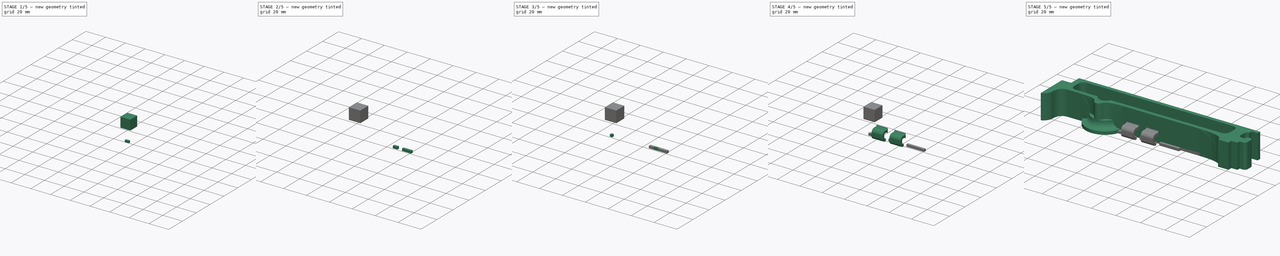
[diagram: build sequence overview — one tinted view per stage of 5, left to right]
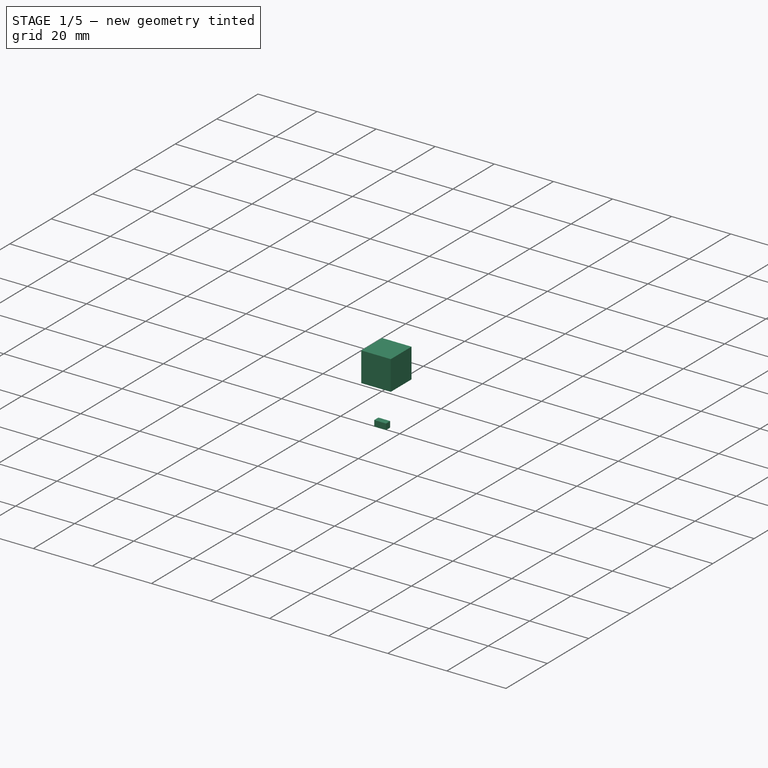
[diagram: stage 1 of 5 — iso view after this stage's code; geometry added in this stage tinted green]
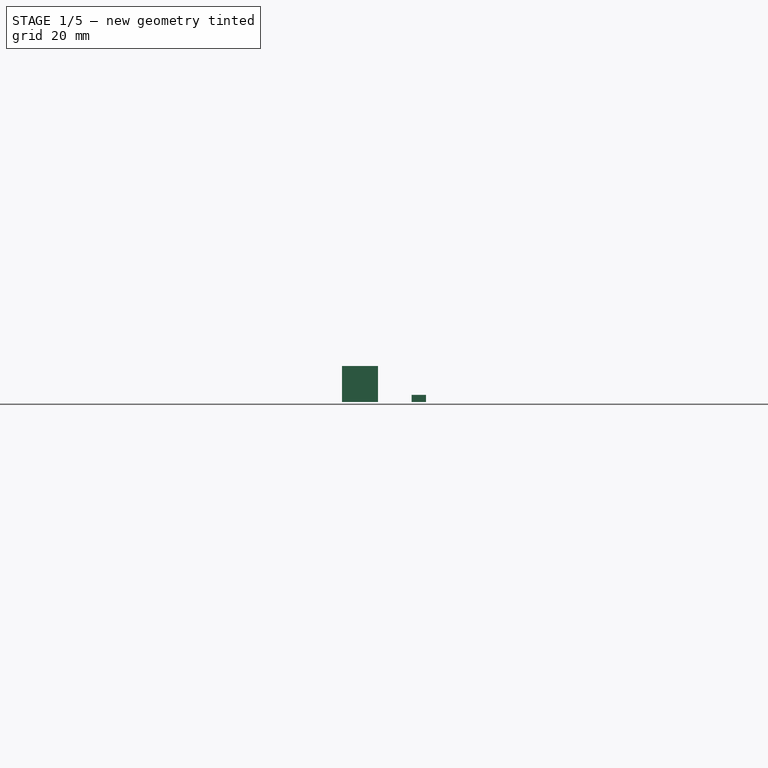
[diagram: stage 1 of 5 — front view after this stage's code; geometry added in this stage tinted green]
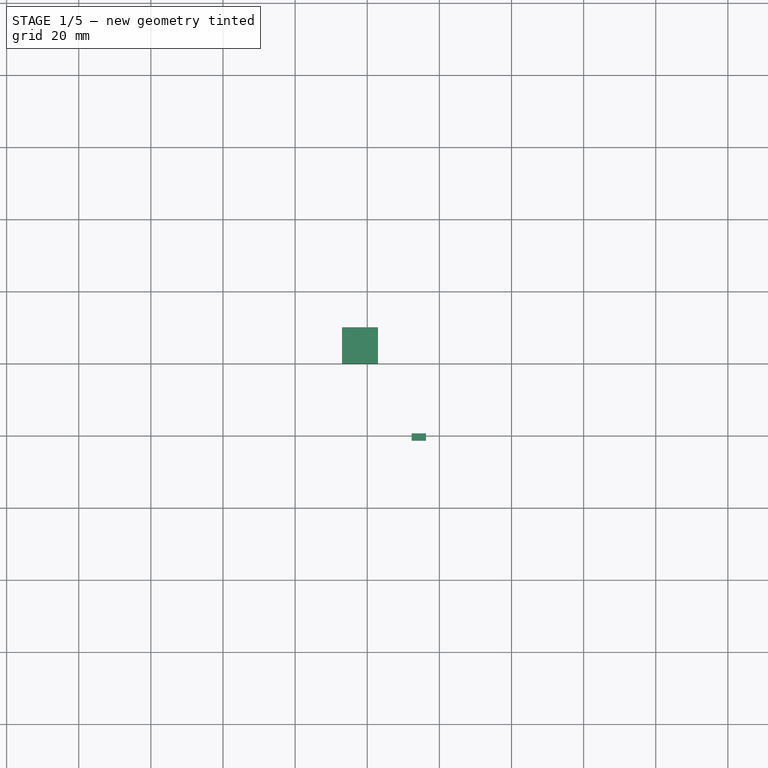
[diagram: stage 1 of 5 — top view after this stage's code; geometry added in this stage tinted green]
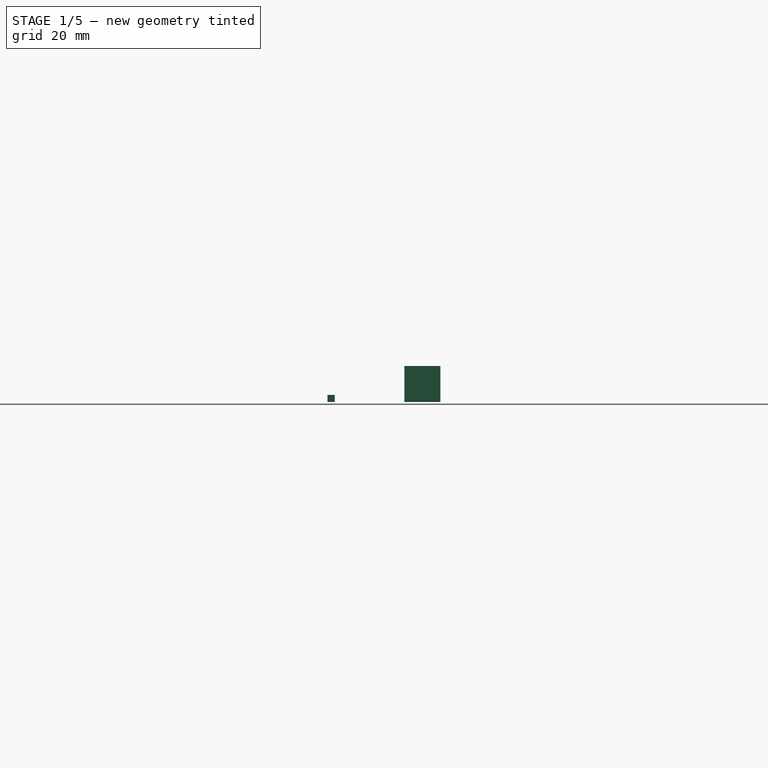
[diagram: stage 1 of 5 — right view after this stage's code; geometry added in this stage tinted green]
FCSTD DOCUMENT  (FreeCAD 0.19R0.19.2)
Label: v0_23
License: All rights reserved
LicenseURL: http://en.wikipedia.org/wiki/All_rights_reserved
objects: Part::Box×12, Part::MultiFuse×9, Sketcher::SketchObject×5, Part::Extrusion×4, App::MeasureDistance×4, Part::Revolution×1, Part::Cut×1
note: 32 computed .brp shape members not serialized (recipe doc carries the construction recipe); baked Part::Feature solids carry a one-line shape summary decoded from their .brp

FEATURE [Part::Box] Box023  label="Cube023"
  AttacherType = Attacher::AttachEngine3D
  Height = 2
  Length = 2
  Placement = pos=(-85.7,-21.3,0) rot=(0,0,1;0rad)
  Width = 2
FEATURE [Part::Box] Box024  label="Cube024"
  AttacherType = Attacher::AttachEngine3D
  Height = 2
  Length = 2
  Placement = pos=(-87.7,-21.3,0) rot=(0,0,1;0rad)
  Width = 2
FEATURE [Part::Box] Box025  label="Cube025"
  AttacherType = Attacher::AttachEngine3D
  Height = 2
  Length = 2
  Placement = pos=(-85.7,-21.3,0) rot=(0,0,1;0rad)
  Width = 2
FEATURE [Part::Box] Box026  label="Cube026"
  AttacherType = Attacher::AttachEngine3D
  Height = 2
  Length = 2
  Placement = pos=(-87.7,-21.3,0) rot=(0,0,1;0rad)
  Width = 2
FEATURE [Part::Box] Box  label="Cube"
  AttacherType = Attacher::AttachEngine3D
  Height = 10
  Length = 10
  Placement = pos=(-107,0,0) rot=(0,0,1;0rad)
  Width = 10
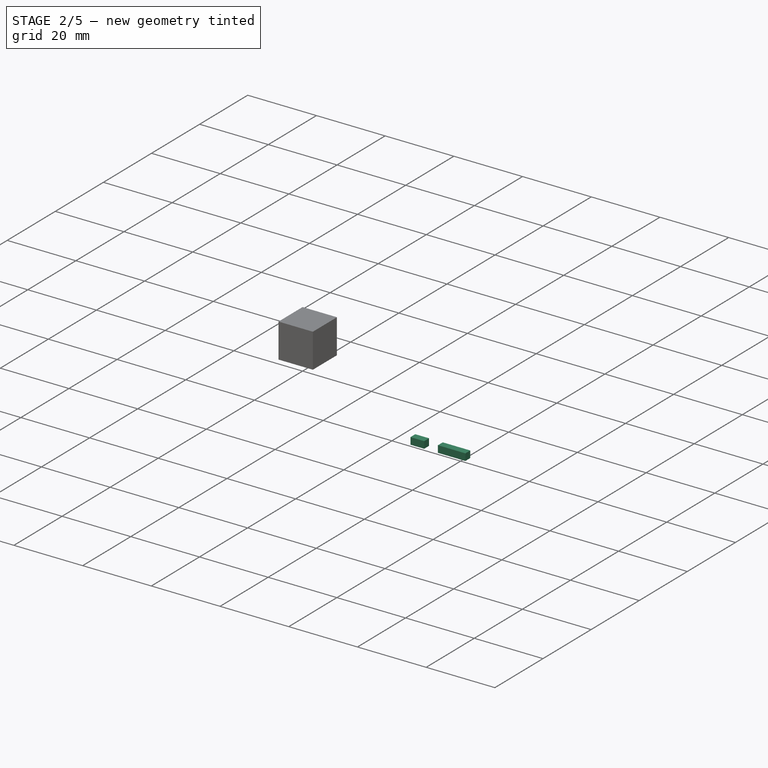
[diagram: stage 2 of 5 — iso view after this stage's code; geometry added in this stage tinted green]
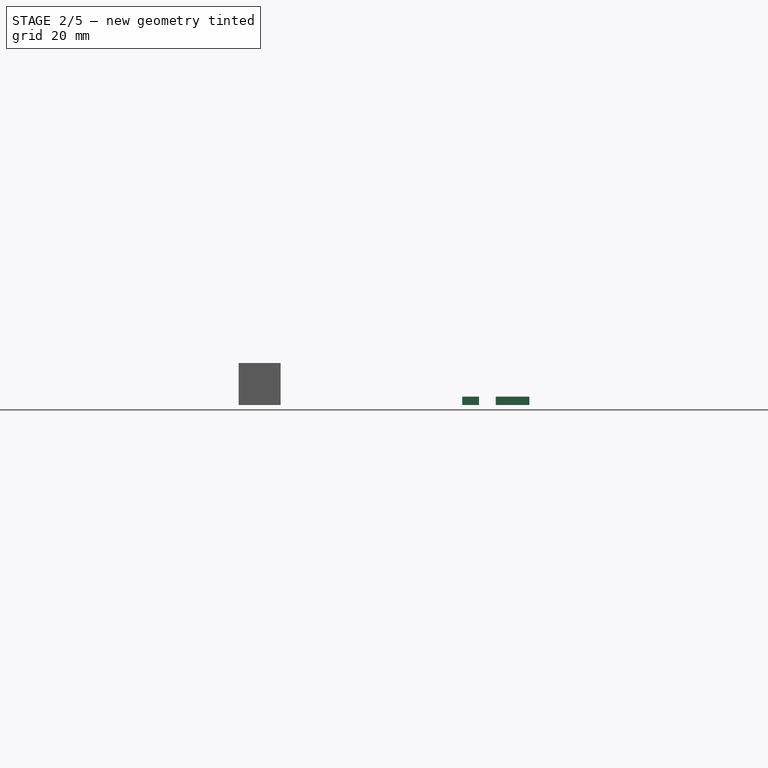
[diagram: stage 2 of 5 — front view after this stage's code; geometry added in this stage tinted green]
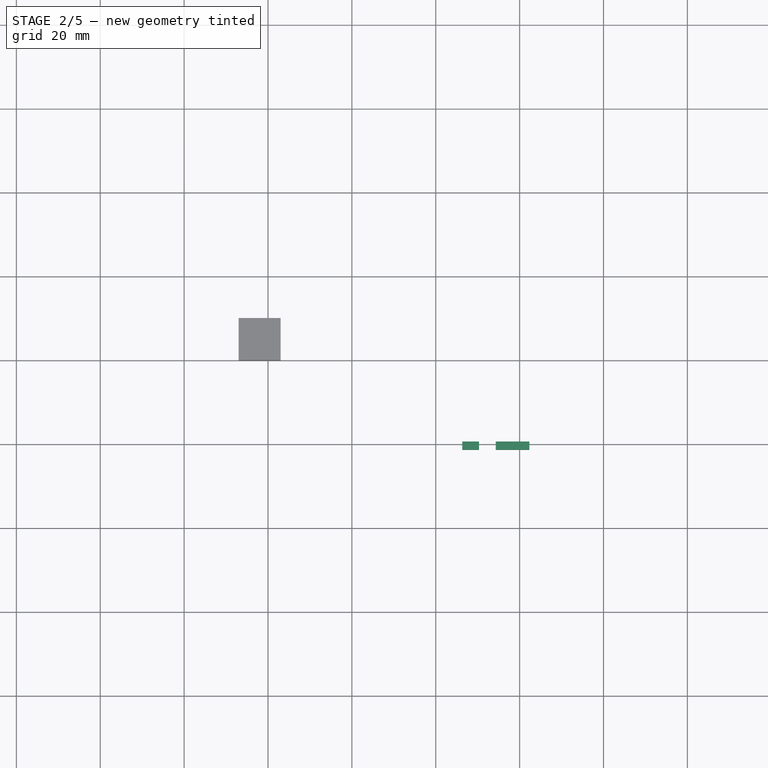
[diagram: stage 2 of 5 — top view after this stage's code; geometry added in this stage tinted green]
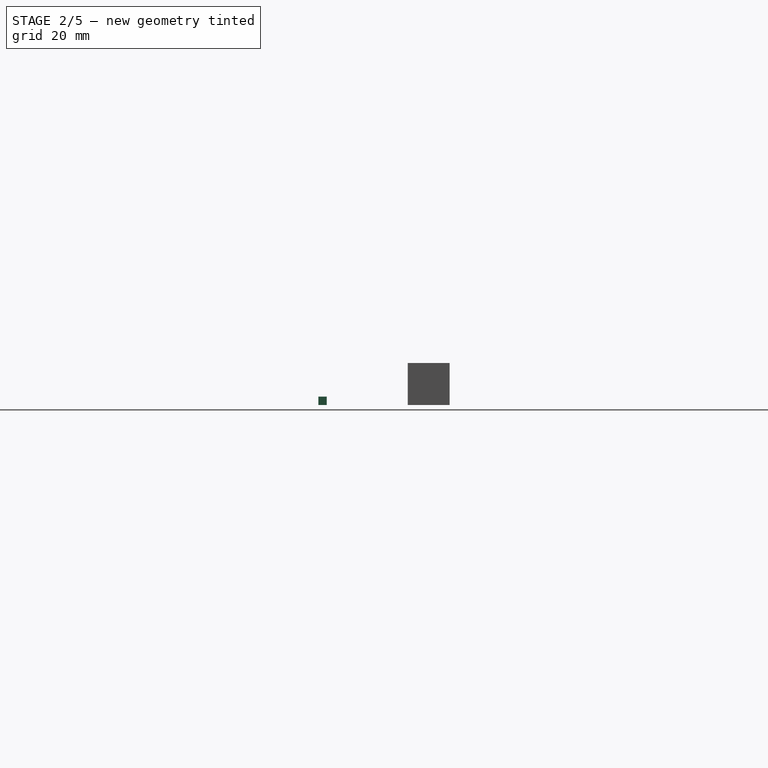
[diagram: stage 2 of 5 — right view after this stage's code; geometry added in this stage tinted green]
FEATURE [App::MeasureDistance] Distance002  label="Distance: 2.07 mm"
  Distance = 2.06534
  P1 = (-67.7,-21.2821,0)
  P2 = (-65.7,-21.7975,-0.00088501)
FEATURE [App::MeasureDistance] Distance003  label="Distance: 2.08 mm"
  Distance = 2.0829
  P1 = (-55.7,-21.7975,-0.00088501)
  P2 = (-53.682,-21.2816,0)
FEATURE [Part::Box] Box021  label="Cube021"
  AttacherType = Attacher::AttachEngine3D
  Height = 2
  Length = 2
  Placement = pos=(-85.7,-21.3,0) rot=(0,0,1;0rad)
  Width = 2
FEATURE [Part::Box] Box022  label="Cube022"
  AttacherType = Attacher::AttachEngine3D
  Height = 2
  Length = 2
  Placement = pos=(-87.7,-21.3,0) rot=(0,0,1;0rad)
  Width = 2
FEATURE [Part::MultiFuse] Fusion002
  Placement = pos=(34.018,0,0) rot=(0,0,1;0rad)
  Shapes = -> [Box021,Box022]
FEATURE [Part::MultiFuse] Fusion006
  Placement = pos=(38.02,0,0) rot=(0,0,1;0rad)
  Shapes = -> [Box023,Box024]
FEATURE [Part::MultiFuse] Fusion005
  Placement = pos=(34.018,0,0) rot=(0,0,1;0rad)
  Shapes = -> [Box025,Box026]
FEATURE [Part::MultiFuse] Fusion004
  Placement = pos=(8,0,0) rot=(0,0,1;0rad)
  Shapes = -> [Fusion006,Fusion005]
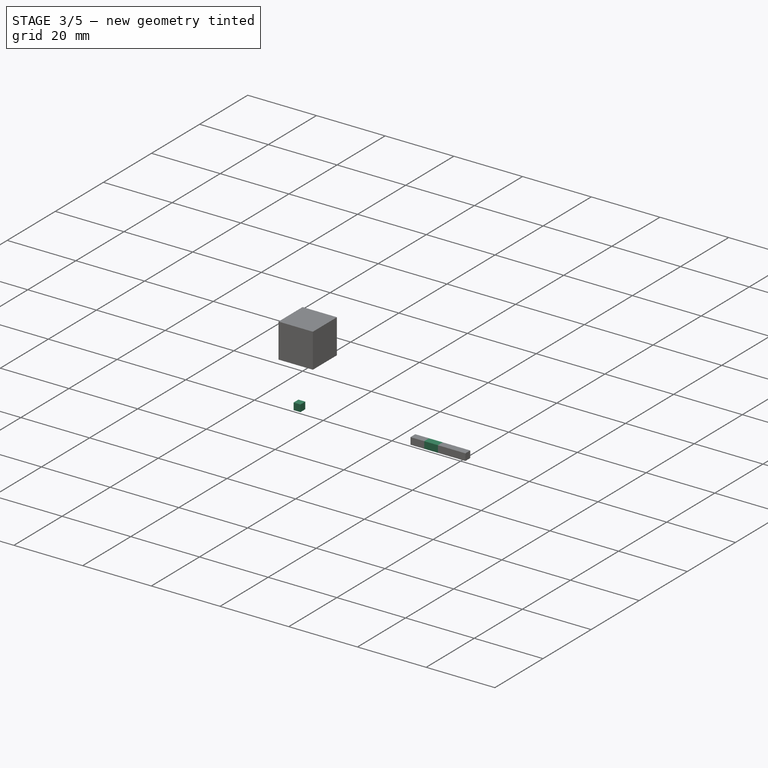
[diagram: stage 3 of 5 — iso view after this stage's code; geometry added in this stage tinted green]
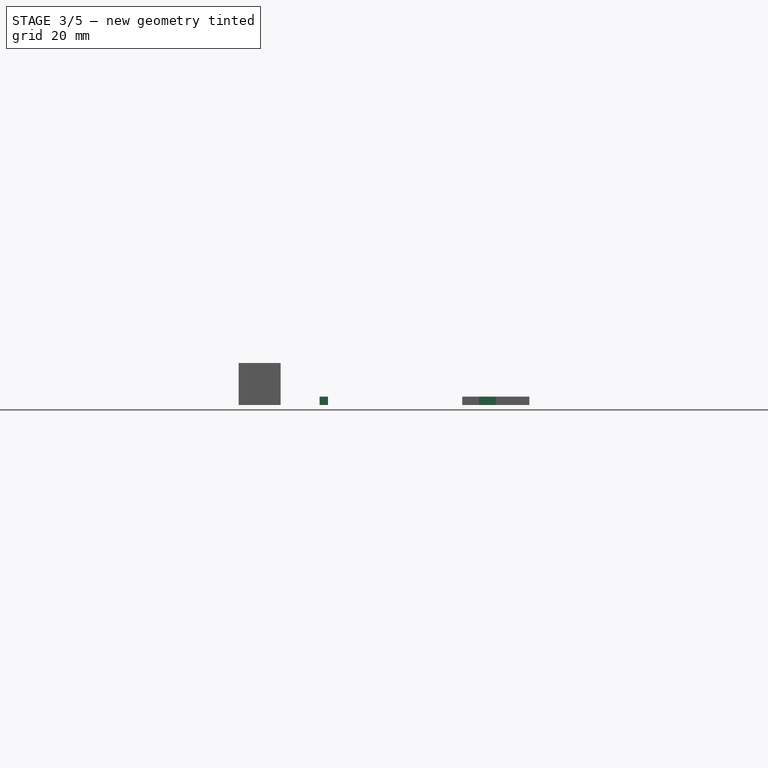
[diagram: stage 3 of 5 — front view after this stage's code; geometry added in this stage tinted green]
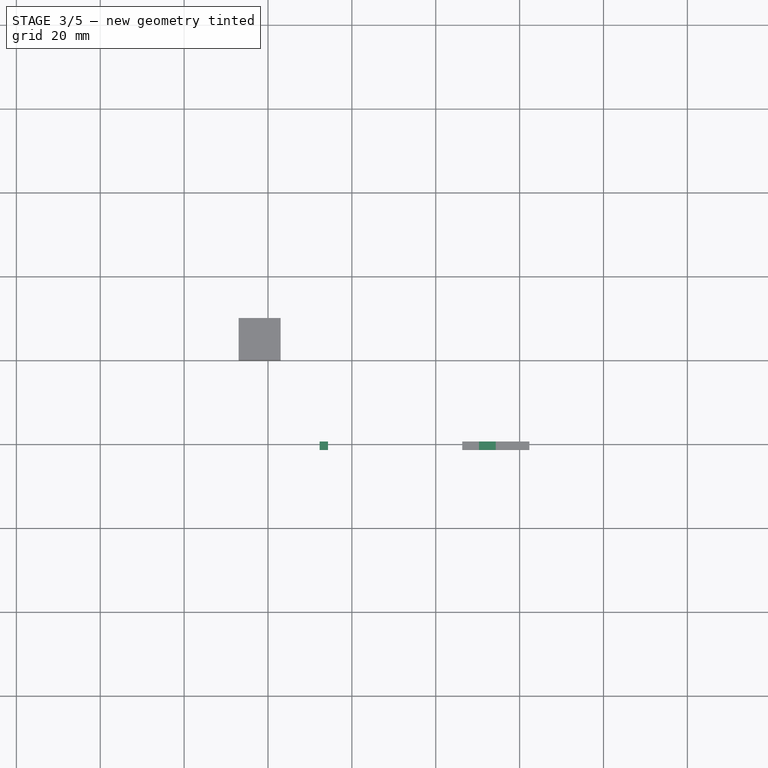
[diagram: stage 3 of 5 — top view after this stage's code; geometry added in this stage tinted green]
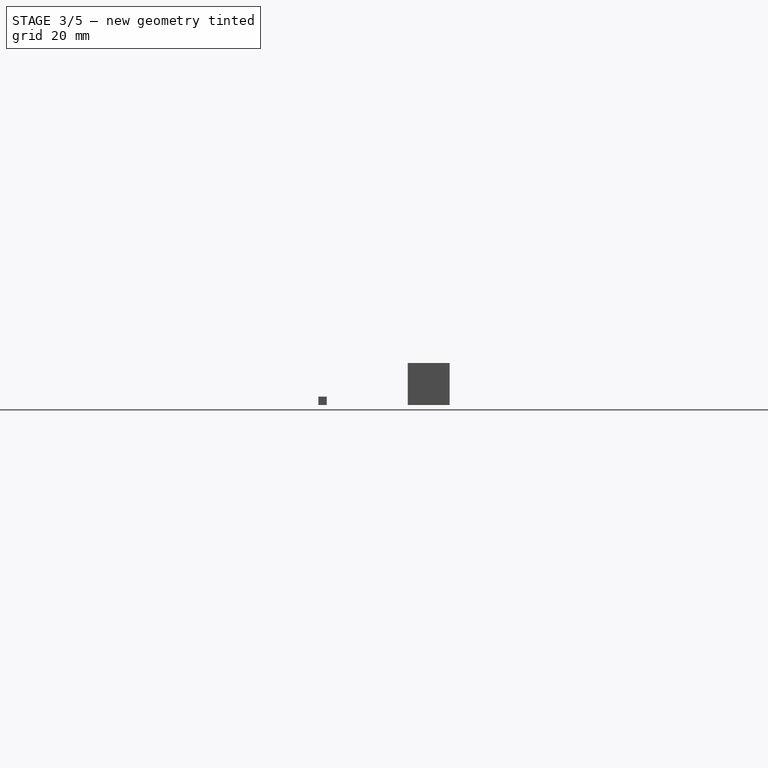
[diagram: stage 3 of 5 — right view after this stage's code; geometry added in this stage tinted green]
FEATURE [App::MeasureDistance] Distance  label="Distance: 6.80 mm"
  Distance = 6.80017
  P1 = (-83.7,-21.2887,0)
  P2 = (-81.7,-21.35,6.49911)
FEATURE [App::MeasureDistance] Distance001  label="Distance: 6.80 mm001"
  Distance = 6.80051
  P1 = (-69.7,-21.2829,0)
  P2 = (-71.7,-21.3744,6.49911)
FEATURE [Part::Box] Box018  label="Cube018"
  AttacherType = Attacher::AttachEngine3D
  Height = 2
  Length = 2
  Placement = pos=(-87.7,-21.3,0) rot=(0,0,1;0rad)
  Width = 2
FEATURE [Part::Box] Box019  label="Cube019"
  AttacherType = Attacher::AttachEngine3D
  Height = 2
  Length = 2
  Placement = pos=(-85.7,-21.3,0) rot=(0,0,1;0rad)
  Width = 2
FEATURE [Part::Box] Box020  label="Cube020"
  AttacherType = Attacher::AttachEngine3D
  Height = 2
  Length = 2
  Placement = pos=(-87.7,-21.3,0) rot=(0,0,1;0rad)
  Width = 2
FEATURE [Part::MultiFuse] Fusion001
  Placement = pos=(38.02,0,0) rot=(0,0,1;0rad)
  Shapes = -> [Box019,Box020]
FEATURE [Part::MultiFuse] Fusion003
  Shapes = -> [Fusion001,Fusion002]
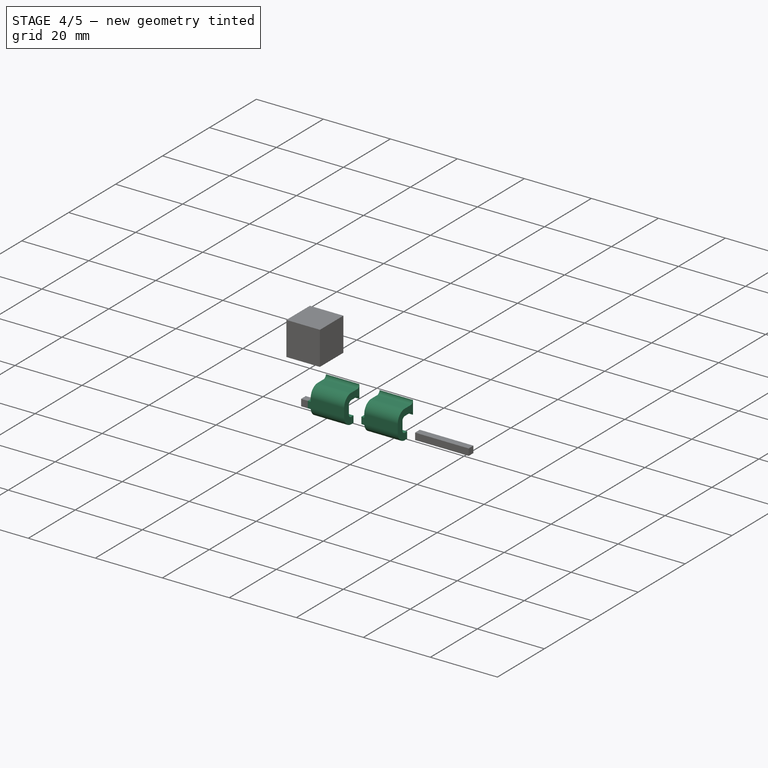
[diagram: stage 4 of 5 — iso view after this stage's code; geometry added in this stage tinted green]
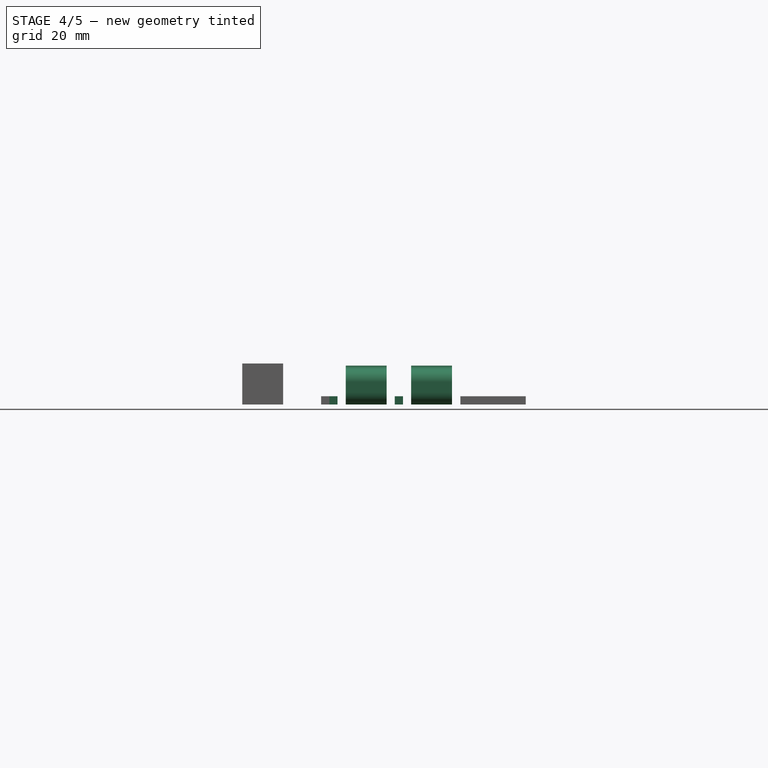
[diagram: stage 4 of 5 — front view after this stage's code; geometry added in this stage tinted green]
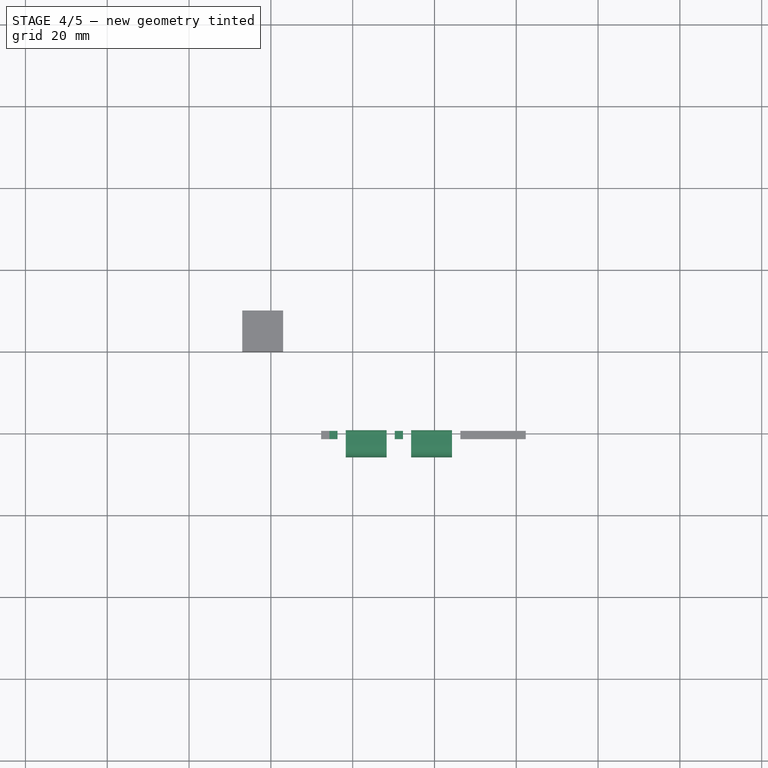
[diagram: stage 4 of 5 — top view after this stage's code; geometry added in this stage tinted green]
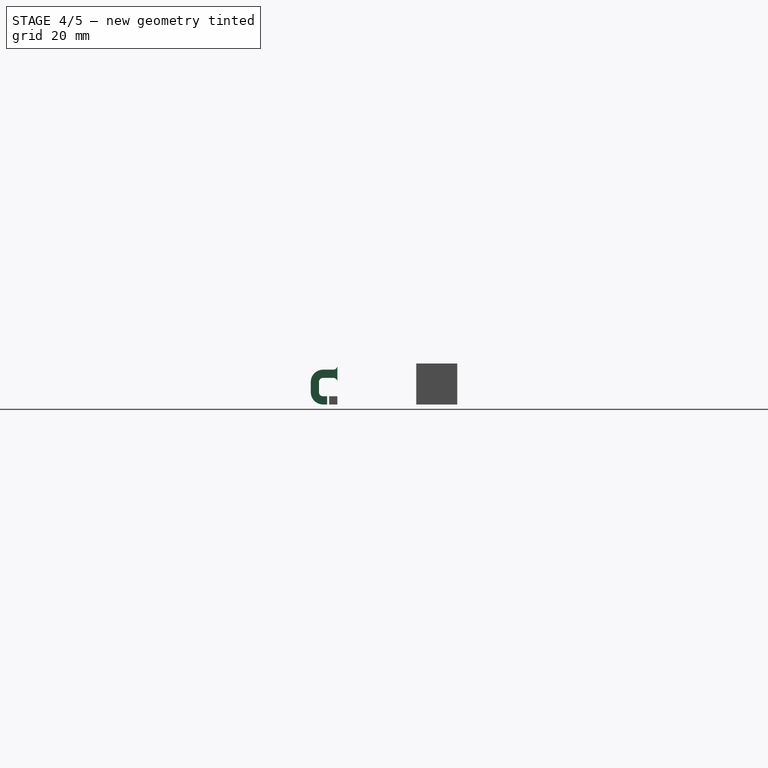
[diagram: stage 4 of 5 — right view after this stage's code; geometry added in this stage tinted green]
FEATURE [Sketcher::SketchObject] Sketch044
  FullyConstrained = true
  MapMode = 4
  Placement = pos=(0,0,0) rot=(0.57735,0.57735,0.57735;2.0944rad)
  sketch-geometry (14):
    g0: LineSegment StartX=6.08745 StartY=-4.11588 StartZ=0 EndX=6.08745 EndY=-2.11589 EndZ=0
    g1: LineSegment StartX=8.08745 StartY=1.38411 StartZ=0 EndX=8.08745 EndY=-1.11589 EndZ=0
    g2: ArcOfCircle CenterX=7.08745 CenterY=-1.11589 CenterZ=0 NormalX=0 NormalY=0 NormalZ=1 AngleXU=0 Radius=1 StartAngle=4.71239 EndAngle=6.28319
    g3: LineSegment StartX=6.08745 StartY=-2.11589 StartZ=0 EndX=7.08745 EndY=-2.11589 EndZ=0
    g4: LineSegment StartX=6.08745 StartY=-4.11588 StartZ=0 EndX=7.08745 EndY=-4.11588 EndZ=0
    g5: ArcOfCircle CenterX=7.08745 CenterY=-1.11589 CenterZ=0 NormalX=0 NormalY=0 NormalZ=1 AngleXU=0 Radius=3 StartAngle=4.71239 EndAngle=6.28319
    g6: ArcOfCircle CenterX=7.08745 CenterY=1.38411 CenterZ=0 NormalX=0 NormalY=0 NormalZ=1 AngleXU=0 Radius=1 StartAngle=5.35e-14 EndAngle=1.5708
    g7: LineSegment StartX=10.0875 StartY=-1.11588 StartZ=0 EndX=10.0875 EndY=1.38411 EndZ=0
    g8: ArcOfCircle CenterX=7.08745 CenterY=1.38411 CenterZ=0 NormalX=0 NormalY=0 NormalZ=1 AngleXU=0 Radius=3 StartAngle=3.57e-14 EndAngle=1.5708
    g9: ArcOfCircle CenterX=4.58745 CenterY=1.38412 CenterZ=0 NormalX=0 NormalY=0 NormalZ=1 AngleXU=0 Radius=1 StartAngle=1.57081 EndAngle=3.14159
    g10: LineSegment StartX=4.58744 StartY=2.38411 StartZ=0 EndX=7.08745 EndY=2.38411 EndZ=0
    g11: LineSegment StartX=4.58745 StartY=4.38411 StartZ=0 EndX=7.08745 EndY=4.38411 EndZ=0
    g12: ArcOfCircle CenterX=4.58745 CenterY=5.38411 CenterZ=0 NormalX=0 NormalY=0 NormalZ=1 AngleXU=0 Radius=1 StartAngle=3.14159 EndAngle=4.71239
    g13: LineSegment StartX=3.58745 StartY=5.38411 StartZ=0 EndX=3.58745 EndY=1.38411 EndZ=0
  constraints (33):
    c: Vertical(g0)
    c: Block(g0)
    c: Block(g1)
    c: Coincident(g2,g1)
    c: Coincident(g3,g0)
    c: Coincident(g3,g2)
    c: Horizontal(g3)
    c: Block(g2)
    c: Coincident(g4,g0)
    c: Horizontal(g4)
    c: Coincident(g5,g2)
    c: Block(g5)
    c: Block(g4)
    c: Coincident(g6,g1)
    c: Block(g6)
    c: Coincident(g7,g5)
    c: Vertical(g7)
    c: Coincident(g8,g6)
    c: Block(g8)
    c: Block(g7)
    c: Coincident(g10,g9)
    c: Coincident(g10,g6)
    c: Horizontal(g10)
    c: Block(g10)
    c: Block(g9)
    c: Coincident(g11,g8)
    c: Horizontal(g11)
    c: Block(g12)
    c: Block(g11)
    c: Coincident(g13,g12)
    c: Coincident(g13,g9)
    c: Vertical(g13)
    c: Tangent(g13,g9)
FEATURE [Part::Extrusion] Extrude039
  Base = -> Sketch044
  Dir = (1,0,0)
  DirMode = 2
  FaceMakerClass = Part::FaceMakerBullseye
  LengthFwd = 10
  LengthRev = 0
  Placement = pos=(-55.7,-15.71,4.115) rot=(0,0,1;3.14159rad)
  Solid = true
  Symmetric = false
FEATURE [Sketcher::SketchObject] Sketch045
  FullyConstrained = true
  MapMode = 4
  Placement = pos=(0,0,0) rot=(0.57735,0.57735,0.57735;2.0944rad)
  sketch-geometry (14):
    g0: LineSegment StartX=6.08745 StartY=-4.11588 StartZ=0 EndX=6.08745 EndY=-2.11589 EndZ=0
    g1: LineSegment StartX=8.08745 StartY=1.38411 StartZ=0 EndX=8.08745 EndY=-1.11589 EndZ=0
    g2: ArcOfCircle CenterX=7.08745 CenterY=-1.11589 CenterZ=0 NormalX=0 NormalY=0 NormalZ=1 AngleXU=0 Radius=1 StartAngle=4.71239 EndAngle=6.28319
    g3: LineSegment StartX=6.08745 StartY=-2.11589 StartZ=0 EndX=7.08745 EndY=-2.11589 EndZ=0
    g4: LineSegment StartX=6.08745 StartY=-4.11588 StartZ=0 EndX=7.08745 EndY=-4.11588 EndZ=0
    g5: ArcOfCircle CenterX=7.08745 CenterY=-1.11589 CenterZ=0 NormalX=0 NormalY=0 NormalZ=1 AngleXU=0 Radius=3 StartAngle=4.71239 EndAngle=6.28319
    g6: ArcOfCircle CenterX=7.08745 CenterY=1.38411 CenterZ=0 NormalX=0 NormalY=0 NormalZ=1 AngleXU=0 Radius=1 StartAngle=5.35e-14 EndAngle=1.5708
    g7: LineSegment StartX=10.0875 StartY=-1.11588 StartZ=0 EndX=10.0875 EndY=1.38411 EndZ=0
    g8: ArcOfCircle CenterX=7.08745 CenterY=1.38411 CenterZ=0 NormalX=0 NormalY=0 NormalZ=1 AngleXU=0 Radius=3 StartAngle=3.57e-14 EndAngle=1.5708
    g9: ArcOfCircle CenterX=4.58745 CenterY=1.38412 CenterZ=0 NormalX=0 NormalY=0 NormalZ=1 AngleXU=0 Radius=1 StartAngle=1.57081 EndAngle=3.14159
    g10: LineSegment StartX=4.58744 StartY=2.38411 StartZ=0 EndX=7.08745 EndY=2.38411 EndZ=0
    g11: LineSegment StartX=4.58745 StartY=4.38411 StartZ=0 EndX=7.08745 EndY=4.38411 EndZ=0
    g12: ArcOfCircle CenterX=4.58745 CenterY=5.38411 CenterZ=0 NormalX=0 NormalY=0 NormalZ=1 AngleXU=0 Radius=1 StartAngle=3.14159 EndAngle=4.71239
    g13: LineSegment StartX=3.58745 StartY=5.38411 StartZ=0 EndX=3.58745 EndY=1.38411 EndZ=0
  constraints (33):
    c: Vertical(g0)
    c: Block(g0)
    c: Block(g1)
    c: Coincident(g2,g1)
    c: Coincident(g3,g0)
    c: Coincident(g3,g2)
    c: Horizontal(g3)
    c: Block(g2)
    c: Coincident(g4,g0)
    c: Horizontal(g4)
    c: Coincident(g5,g2)
    c: Block(g5)
    c: Block(g4)
    c: Coincident(g6,g1)
    c: Block(g6)
    c: Coincident(g7,g5)
    c: Vertical(g7)
    c: Coincident(g8,g6)
    c: Block(g8)
    c: Block(g7)
    c: Coincident(g10,g9)
    c: Coincident(g10,g6)
    c: Horizontal(g10)
    c: Block(g10)
    c: Block(g9)
    c: Coincident(g11,g8)
    c: Horizontal(g11)
    c: Block(g12)
    c: Block(g11)
    c: Coincident(g13,g12)
    c: Coincident(g13,g9)
    c: Vertical(g13)
    c: Tangent(g13,g9)
FEATURE [Part::Extrusion] Extrude040
  Base = -> Sketch045
  Dir = (1,0,0)
  DirMode = 2
  FaceMakerClass = Part::FaceMakerBullseye
  LengthFwd = 10
  LengthRev = 0
  Placement = pos=(-71.7,-15.71,4.115) rot=(0,0,1;3.14159rad)
  Solid = true
  Symmetric = false
FEATURE [Part::Box] Box016  label="Cube016"
  AttacherType = Attacher::AttachEngine3D
  Height = 2
  Length = 2
  Placement = pos=(-69.7,-21.3,0) rot=(0,0,1;0rad)
  Width = 2
FEATURE [Part::Box] Box017  label="Cube017"
  AttacherType = Attacher::AttachEngine3D
  Height = 2
  Length = 2
  Placement = pos=(-85.7,-21.3,0) rot=(0,0,1;0rad)
  Width = 2
FEATURE [Part::MultiFuse] Fusion
  Shapes = -> [Box017,Box018]
FEATURE [Part::MultiFuse] Fusion007
  Shapes = -> [Fusion004,Fusion003,Box016,Fusion]
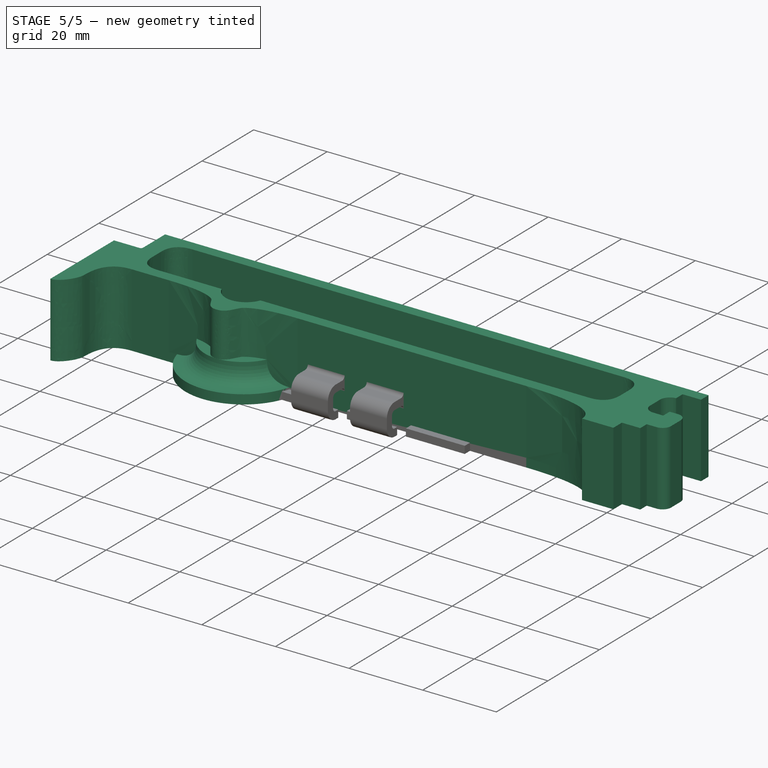
[diagram: stage 5 of 5 — iso view after this stage's code; geometry added in this stage tinted green]
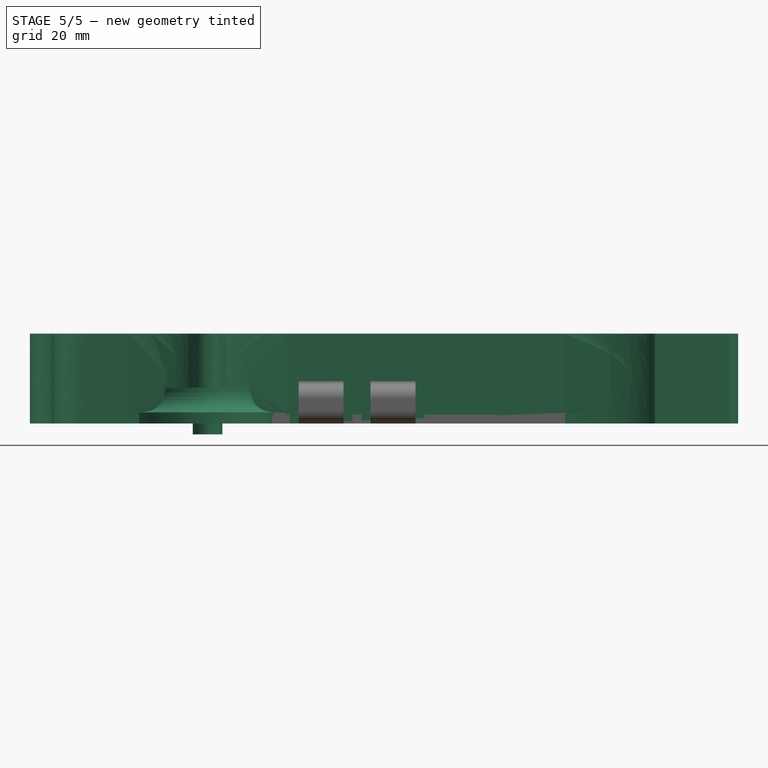
[diagram: stage 5 of 5 — front view after this stage's code; geometry added in this stage tinted green]
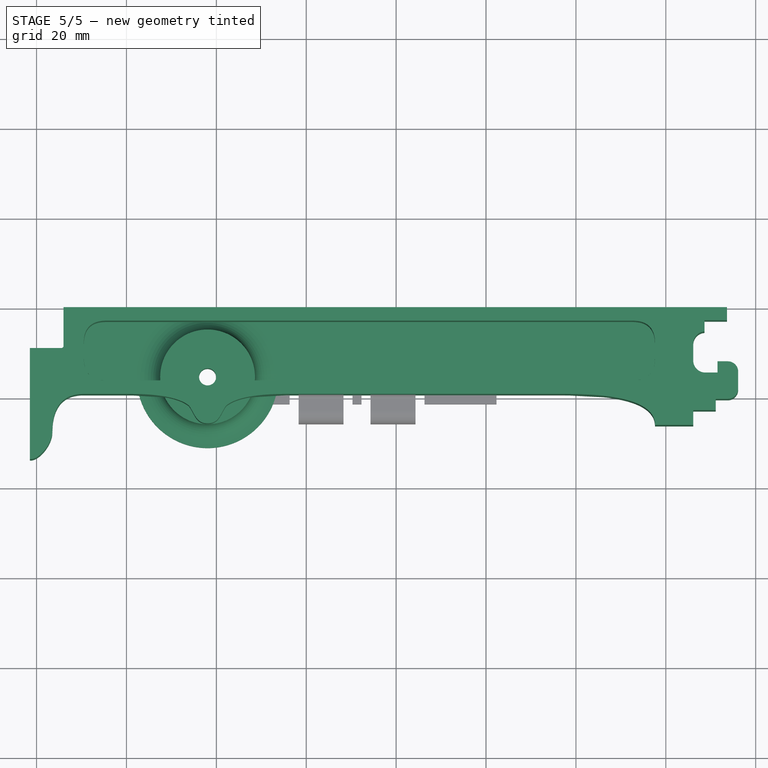
[diagram: stage 5 of 5 — top view after this stage's code; geometry added in this stage tinted green]
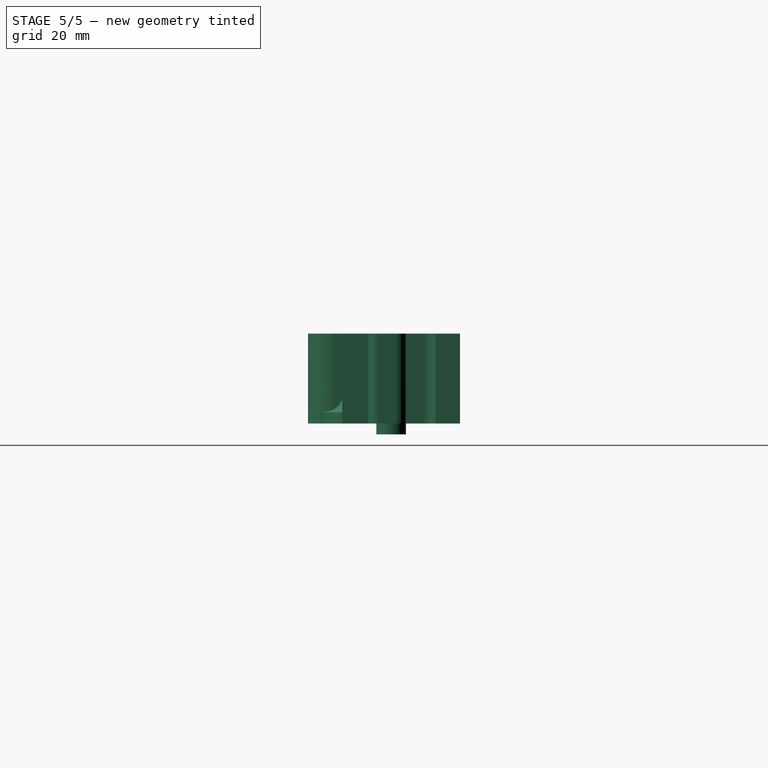
[diagram: stage 5 of 5 — right view after this stage's code; geometry added in this stage tinted green]
FEATURE [Sketcher::SketchObject] Sketch
  FullyConstrained = true
  sketch-geometry (66):
    g0: Circle CenterX=-101.95 CenterY=-14.3 CenterZ=0 NormalX=0 NormalY=0 NormalZ=1 AngleXU=0 Radius=3.25
    g1: LineSegment StartX=-134 StartY=2.68e-14 StartZ=0 EndX=-134 EndY=-8.6 EndZ=0
    g2: LineSegment StartX=-134.5 StartY=-9.1 StartZ=0 EndX=-141.5 EndY=-9.1 EndZ=0
    g3: ArcOfCircle CenterX=-134.5 CenterY=-8.6 CenterZ=0 NormalX=0 NormalY=0 NormalZ=1 AngleXU=0 Radius=0.5 StartAngle=4.71239 EndAngle=6.28319
    g4: Circle CenterX=-97.7 CenterY=-21.8 CenterZ=0 NormalX=0 NormalY=0 NormalZ=1 AngleXU=0 Radius=1
    g5: Circle CenterX=-94.45 CenterY=-19.3 CenterZ=0 NormalX=0 NormalY=0 NormalZ=1 AngleXU=0 Radius=1
    g6: Circle CenterX=-84.45 CenterY=-19.3 CenterZ=0 NormalX=0 NormalY=0 NormalZ=1 AngleXU=0 Radius=1
    g7: BSplineCurve PolesCount=3 KnotsCount=2 Degree=2 IsPeriodic=0
    g8: GeomPoint X=-97.7 Y=-21.8 Z=0
    g9: GeomPoint X=-84.45 Y=-19.3 Z=0
    g10: Circle CenterX=-106.2 CenterY=-21.8 CenterZ=0 NormalX=0 NormalY=0 NormalZ=1 AngleXU=0 Radius=1
    g11: Circle CenterX=-109.45 CenterY=-19.3 CenterZ=0 NormalX=0 NormalY=0 NormalZ=1 AngleXU=0 Radius=1
    g12: Circle CenterX=-119.45 CenterY=-19.3 CenterZ=0 NormalX=0 NormalY=0 NormalZ=1 AngleXU=0 Radius=1
    g13: BSplineCurve PolesCount=3 KnotsCount=2 Degree=2 IsPeriodic=0
    g14: GeomPoint X=-106.2 Y=-21.8 Z=0
    g15: GeomPoint X=-119.45 Y=-19.3 Z=0
    g16: LineSegment StartX=-141.5 StartY=-9.1 StartZ=0 EndX=-141.5 EndY=-33.8 EndZ=0
    g17-g20: Circle x4 (B-spline internal-alignment scaffolding for g21; pole/knot coordinates omitted)
    g21: BSplineCurve PolesCount=4 KnotsCount=2 Degree=3 IsPeriodic=0
    g22: GeomPoint X=-141.5 Y=-33.8 Z=0
    g23: GeomPoint X=-136.5 Y=-27.8 Z=0
    g24: Circle CenterX=-136.5 CenterY=-27.8 CenterZ=0 NormalX=0 NormalY=0 NormalZ=1 AngleXU=0 Radius=1
    g25: Circle CenterX=-136.5 CenterY=-19.3 CenterZ=0 NormalX=0 NormalY=0 NormalZ=1 AngleXU=0 Radius=1
    g26: Circle CenterX=-129.5 CenterY=-19.3 CenterZ=0 NormalX=0 NormalY=0 NormalZ=1 AngleXU=0 Radius=1
    g27: BSplineCurve PolesCount=3 KnotsCount=2 Degree=2 IsPeriodic=0
    g28: GeomPoint X=-136.5 Y=-27.8 Z=0
    g29: GeomPoint X=-129.5 Y=-19.3 Z=0
    g30: LineSegment StartX=-129.5 StartY=-19.3 StartZ=0 EndX=-119.45 EndY=-19.3 EndZ=0
    g31-g37: Circle x7 (B-spline internal-alignment scaffolding for g38; pole/knot coordinates omitted)
    g38: BSplineCurve PolesCount=7 KnotsCount=5 Degree=3 IsPeriodic=0
    g39-g43: GeomPoint x5 (B-spline internal-alignment scaffolding for g38; pole/knot coordinates omitted)
    g44: LineSegment StartX=6.1 StartY=-22.9 StartZ=0 EndX=6.1 EndY=-26.2 EndZ=0
    g45: ArcOfCircle CenterX=13.8 CenterY=-14.35 CenterZ=0 NormalX=0 NormalY=0 NormalZ=1 AngleXU=0 Radius=2.3 StartAngle=8e-16 EndAngle=1.5708
    g46: LineSegment StartX=8.6 StartY=-5.40742 StartZ=0 EndX=8.6 EndY=-2.9 EndZ=0
    g47: LineSegment StartX=8.6 StartY=-2.9 StartZ=0 EndX=13.6 EndY=-2.9 EndZ=0
    g48: LineSegment StartX=13.6 StartY=-2.9 StartZ=0 EndX=13.6 EndY=2.66e-14 EndZ=0
    g49: LineSegment StartX=8.8 StartY=-14.55 StartZ=0 EndX=11.5 EndY=-14.55 EndZ=0
    g50: LineSegment StartX=11.5 StartY=-12.05 StartZ=0 EndX=11.5 EndY=-14.55 EndZ=0
    g51: LineSegment StartX=11.5 StartY=-12.05 StartZ=0 EndX=13.8 EndY=-12.05 EndZ=0
    g52: ArcOfCircle CenterX=13.8 CenterY=-18.1 CenterZ=0 NormalX=0 NormalY=0 NormalZ=1 AngleXU=0 Radius=2.3 StartAngle=4.71239 EndAngle=6.28319
    g53: LineSegment StartX=13.8 StartY=-20.4 StartZ=0 EndX=11.1 EndY=-20.4 EndZ=0
    g54: LineSegment StartX=11.1 StartY=-22.9 StartZ=0 EndX=11.1 EndY=-20.4 EndZ=0
    g55: LineSegment StartX=16.1 StartY=-14.35 StartZ=0 EndX=16.1 EndY=-18.1 EndZ=0
    g56: ArcOfCircle CenterX=8.8 CenterY=-8.1 CenterZ=0 NormalX=0 NormalY=0 NormalZ=1 AngleXU=0 Radius=2.7 StartAngle=1.64494 EndAngle=3.14159
    g57: ArcOfCircle CenterX=8.8 CenterY=-11.85 CenterZ=0 NormalX=0 NormalY=0 NormalZ=1 AngleXU=0 Radius=2.7 StartAngle=3.14159 EndAngle=4.71239
    g58: LineSegment StartX=6.1 StartY=-8.1 StartZ=0 EndX=6.1 EndY=-11.85 EndZ=0
    g59: LineSegment StartX=6.1 StartY=-22.9 StartZ=0 EndX=11.1 EndY=-22.9 EndZ=0
    g60: LineSegment StartX=13.6 StartY=2.68e-14 StartZ=0 EndX=-134 EndY=2.68e-14 EndZ=0
    g61: BSplineCurve PolesCount=3 KnotsCount=2 Degree=2 IsPeriodic=0
    g62: GeomPoint X=-2.4 Y=-26.2 Z=0
    g63: GeomPoint X=-22.4 Y=-19.3 Z=0
    g64: LineSegment StartX=-2.4 StartY=-26.2 StartZ=0 EndX=6.1 EndY=-26.2 EndZ=0
    g65: LineSegment StartX=-84.45 StartY=-19.3 StartZ=0 EndX=-22.4 EndY=-19.3 EndZ=0
  constraints (104):
    c: Block(g0)
    c: Vertical(g1)
    c: Distance(g1) = 8.6
    c: Horizontal(g2)
    c: Distance(g2) = 7
    c: Coincident(g3,g1)
    c: Coincident(g3,g2)
    c: Block(g3)
    c: Weight(g4) = 1
    c: Equal(g4,g5)
    c: Equal(g4,g6)
    c: InternalAlignment(g4,g7)
    c: InternalAlignment(g5,g7)
    c: InternalAlignment(g6,g7)
    c: InternalAlignment(g8,g7)
    c: InternalAlignment(g9,g7)
    c: Weight(g10) = 1
    c: Equal(g10,g11)
    c: Equal(g10,g12)
    c: InternalAlignment(g10,g13)
    c: InternalAlignment(g11,g13)
    c: InternalAlignment(g12,g13)
    c: InternalAlignment(g14,g13)
    c: InternalAlignment(g15,g13)
    c: Block(g13)
    c: Block(g7)
    c: Coincident(g16,g2)
    c: Vertical(g16)
    c: Block(g16)
    c: Coincident(g21,g16)
    c: Weight(g17) = 1
    c: Equal(g17,g18)
    c: Equal(g17,g19)
    c: Equal(g17,g20)
    c: InternalAlignment(g17-g20 -> g21) x4
    c: InternalAlignment(g22,g21)
    c: InternalAlignment(g23,g21)
    c: Weight(g24) = 1
    c: Equal(g24,g25)
    c: Equal(g24,g26)
    c: InternalAlignment(g24,g27)
    c: InternalAlignment(g25,g27)
    c: InternalAlignment(g26,g27)
    c: InternalAlignment(g28,g27)
    c: InternalAlignment(g29,g27)
    c: Block(g21)
    c: Block(g27)
    c: Coincident(g30,g27)
    c: Coincident(g30,g13)
    c: Horizontal(g30)
    c: Weight(g31) = 1
    c: Equal(g31, g32-g37) x6
    c: InternalAlignment(g31-g37 -> g38) x7
    c: InternalAlignment(g39-g43 -> g38) x5
    c: Block(g38)
    c: Vertical(g44)
    c: Distance(g44) = 3.3
    c: Block(g52)
    c: Block(g45)
    c: Coincident(g53,g52)
    c: Horizontal(g53)
    c: Vertical(g54)
    c: Coincident(g54,g53)
    c: Coincident(g55,g45)
    c: Coincident(g55,g52)
    c: Vertical(g55)
    c: Vertical(g46)
    c: Block(g46)
    c: Coincident(g47,g46)
    c: Horizontal(g47)
    c: Vertical(g48)
    c: Block(g48)
    c: Block(g47)
    c: Coincident(g56,g46)
    c: Block(g57)
    c: Coincident(g58,g56)
    c: Coincident(g58,g57)
    c: Vertical(g58)
    c: Block(g58)
    c: Coincident(g49,g57)
    c: Horizontal(g49)
    c: Vertical(g50)
    c: Coincident(g50,g49)
    c: Block(g50)
    c: Coincident(g51,g45)
    c: Horizontal(g51)
    c: Block(g51)
    c: Coincident(g59,g54)
    c: Horizontal(g59)
    c: Block(g59)
    c: Block(g56)
    c: Coincident(g59,g44)
    c: Coincident(g60,g48)
    c: Coincident(g60,g1)
    c: Horizontal(g60)
    c: InternalAlignment(g62,g61)
    c: InternalAlignment(g63,g61)
    c: Block(g61)
    c: Coincident(g64,g61)
    c: Coincident(g64,g44)
    c: Horizontal(g64)
    c: Coincident(g65,g7)
    c: Coincident(g65,g61)
    c: Horizontal(g65)
FEATURE [Part::Extrusion] Extrude
  Base = -> Sketch
  Dir = (0,0,1)
  DirMode = 2
  FaceMakerClass = Part::FaceMakerBullseye
  LengthFwd = 2.4
  LengthRev = 0
  Solid = true
  Symmetric = false
FEATURE [Sketcher::SketchObject] Sketch001
  FullyConstrained = true
  sketch-geometry (91):
    g0: LineSegment StartX=-134 StartY=0 StartZ=0 EndX=-134 EndY=-8.6 EndZ=0
    g1: LineSegment StartX=-134.5 StartY=-9.1 StartZ=0 EndX=-141.5 EndY=-9.1 EndZ=0
    g2: ArcOfCircle CenterX=-134.5 CenterY=-8.6 CenterZ=0 NormalX=0 NormalY=0 NormalZ=1 AngleXU=0 Radius=0.5 StartAngle=4.71239 EndAngle=6.28319
    g3: Circle CenterX=-97.7 CenterY=-21.8 CenterZ=0 NormalX=0 NormalY=0 NormalZ=1 AngleXU=0 Radius=1
    g4: Circle CenterX=-94.45 CenterY=-19.3 CenterZ=0 NormalX=0 NormalY=0 NormalZ=1 AngleXU=0 Radius=1
    g5: Circle CenterX=-84.45 CenterY=-19.3 CenterZ=0 NormalX=0 NormalY=0 NormalZ=1 AngleXU=0 Radius=1
    g6: BSplineCurve PolesCount=3 KnotsCount=2 Degree=2 IsPeriodic=0
    g7: GeomPoint X=-97.7 Y=-21.8 Z=0
    g8: GeomPoint X=-84.45 Y=-19.3 Z=0
    g9: Circle CenterX=-106.2 CenterY=-21.8 CenterZ=0 NormalX=0 NormalY=0 NormalZ=1 AngleXU=0 Radius=1
    g10: Circle CenterX=-109.45 CenterY=-19.3 CenterZ=0 NormalX=0 NormalY=0 NormalZ=1 AngleXU=0 Radius=1
    g11: Circle CenterX=-119.45 CenterY=-19.3 CenterZ=0 NormalX=0 NormalY=0 NormalZ=1 AngleXU=0 Radius=1
    g12: BSplineCurve PolesCount=3 KnotsCount=2 Degree=2 IsPeriodic=0
    g13: GeomPoint X=-106.2 Y=-21.8 Z=0
    g14: GeomPoint X=-119.45 Y=-19.3 Z=0
    g15: LineSegment StartX=-141.5 StartY=-9.1 StartZ=0 EndX=-141.5 EndY=-33.8 EndZ=0
    g16-g19: Circle x4 (B-spline internal-alignment scaffolding for g20; pole/knot coordinates omitted)
    g20: BSplineCurve PolesCount=4 KnotsCount=2 Degree=3 IsPeriodic=0
    g21: GeomPoint X=-141.5 Y=-33.8 Z=0
    g22: GeomPoint X=-136.5 Y=-27.8 Z=0
    g23: Circle CenterX=-136.5 CenterY=-27.8 CenterZ=0 NormalX=0 NormalY=0 NormalZ=1 AngleXU=0 Radius=1
    g24: Circle CenterX=-136.5 CenterY=-19.3 CenterZ=0 NormalX=0 NormalY=0 NormalZ=1 AngleXU=0 Radius=1
    g25: Circle CenterX=-129.5 CenterY=-19.3 CenterZ=0 NormalX=0 NormalY=0 NormalZ=1 AngleXU=0 Radius=1
    g26: BSplineCurve PolesCount=3 KnotsCount=2 Degree=2 IsPeriodic=0
    g27: GeomPoint X=-136.5 Y=-27.8 Z=0
    g28: GeomPoint X=-129.5 Y=-19.3 Z=0
    g29: LineSegment StartX=-129.5 StartY=-19.3 StartZ=0 EndX=-119.45 EndY=-19.3 EndZ=0
    g30-g36: Circle x7 (B-spline internal-alignment scaffolding for g37; pole/knot coordinates omitted)
    g37: BSplineCurve PolesCount=7 KnotsCount=5 Degree=3 IsPeriodic=0
    g38-g42: GeomPoint x5 (B-spline internal-alignment scaffolding for g37; pole/knot coordinates omitted)
    g43: Circle CenterX=-124.5 CenterY=-16.3 CenterZ=0 NormalX=0 NormalY=0 NormalZ=1 AngleXU=0 Radius=1
    g44: Circle CenterX=-129.5 CenterY=-16.3 CenterZ=0 NormalX=0 NormalY=0 NormalZ=1 AngleXU=0 Radius=1
    g45: Circle CenterX=-129.5 CenterY=-11.3 CenterZ=0 NormalX=0 NormalY=0 NormalZ=1 AngleXU=0 Radius=1
    g46: BSplineCurve PolesCount=3 KnotsCount=2 Degree=2 IsPeriodic=0
    g47: GeomPoint X=-124.5 Y=-16.3 Z=0
    g48: GeomPoint X=-129.5 Y=-11.3 Z=0
    g49: Circle CenterX=-129.5 CenterY=-8 CenterZ=0 NormalX=0 NormalY=0 NormalZ=1 AngleXU=0 Radius=1
    g50: Circle CenterX=-129.5 CenterY=-3 CenterZ=0 NormalX=0 NormalY=0 NormalZ=1 AngleXU=0 Radius=1
    g51: Circle CenterX=-124.5 CenterY=-3 CenterZ=0 NormalX=0 NormalY=0 NormalZ=1 AngleXU=0 Radius=1
    g52: BSplineCurve PolesCount=3 KnotsCount=2 Degree=2 IsPeriodic=0
    g53: GeomPoint X=-129.5 Y=-8 Z=0
    g54: GeomPoint X=-124.5 Y=-3 Z=0
    g55: LineSegment StartX=-129.5 StartY=-8 StartZ=0 EndX=-129.5 EndY=-11.3 EndZ=0
    g56: ArcOfCircle CenterX=-101.95 CenterY=-14.3 CenterZ=0 NormalX=0 NormalY=0 NormalZ=1 AngleXU=0 Radius=5.61805 StartAngle=3.50557 EndAngle=5.91921
    g57: LineSegment StartX=-124.5 StartY=-16.3 StartZ=0 EndX=-107.2 EndY=-16.3 EndZ=0
    g58: LineSegment StartX=8.6 StartY=-2.9 StartZ=0 EndX=13.6 EndY=-2.9 EndZ=0
    g59: ArcOfCircle CenterX=13.8 CenterY=-14.35 CenterZ=0 NormalX=0 NormalY=0 NormalZ=1 AngleXU=0 Radius=2.3 StartAngle=8e-16 EndAngle=1.5708
    g60: ArcOfCircle CenterX=13.8 CenterY=-18.1 CenterZ=0 NormalX=0 NormalY=0 NormalZ=1 AngleXU=0 Radius=2.3 StartAngle=4.71239 EndAngle=6.28319
    g61: LineSegment StartX=13.8 StartY=-20.4 StartZ=0 EndX=11.1 EndY=-20.4 EndZ=0
    g62: LineSegment StartX=11.1 StartY=-22.9 StartZ=0 EndX=11.1 EndY=-20.4 EndZ=0
    g63: LineSegment StartX=16.1 StartY=-14.35 StartZ=0 EndX=16.1 EndY=-18.1 EndZ=0
    g64: LineSegment StartX=8.6 StartY=-5.40742 StartZ=0 EndX=8.6 EndY=-2.9 EndZ=0
    g65: ArcOfCircle CenterX=8.8 CenterY=-8.1 CenterZ=0 NormalX=0 NormalY=0 NormalZ=1 AngleXU=0 Radius=2.7 StartAngle=1.64494 EndAngle=3.14159
    g66: ArcOfCircle CenterX=8.8 CenterY=-11.85 CenterZ=0 NormalX=0 NormalY=0 NormalZ=1 AngleXU=0 Radius=2.7 StartAngle=3.14159 EndAngle=4.71239
    g67: LineSegment StartX=6.1 StartY=-8.1 StartZ=0 EndX=6.1 EndY=-11.85 EndZ=0
    g68: LineSegment StartX=8.8 StartY=-14.55 StartZ=0 EndX=11.5 EndY=-14.55 EndZ=0
    g69: LineSegment StartX=11.5 StartY=-12.05 StartZ=0 EndX=11.5 EndY=-14.55 EndZ=0
    g70: LineSegment StartX=11.5 StartY=-12.05 StartZ=0 EndX=13.8 EndY=-12.05 EndZ=0
    g71: LineSegment StartX=6.1 StartY=-22.9 StartZ=0 EndX=11.1 EndY=-22.9 EndZ=0
    g72: LineSegment StartX=-134 StartY=0 StartZ=0 EndX=13.6 EndY=0 EndZ=0
    g73: LineSegment StartX=13.6 StartY=-2.9 StartZ=0 EndX=13.6 EndY=0 EndZ=0
    g74: Circle CenterX=-2.4 CenterY=-26.2 CenterZ=0 NormalX=0 NormalY=0 NormalZ=1 AngleXU=0 Radius=1
    g75: Circle CenterX=-2.4 CenterY=-19.3 CenterZ=0 NormalX=0 NormalY=0 NormalZ=1 AngleXU=0 Radius=1
    g76: Circle CenterX=-22.4 CenterY=-19.3 CenterZ=0 NormalX=0 NormalY=0 NormalZ=1 AngleXU=0 Radius=1
    g77: BSplineCurve PolesCount=3 KnotsCount=2 Degree=2 IsPeriodic=0
    g78: GeomPoint X=-2.4 Y=-26.2 Z=0
    g79: LineSegment StartX=-2.4 StartY=-26.2 StartZ=0 EndX=6.1 EndY=-26.2 EndZ=0
    g80: LineSegment StartX=-22.4 StartY=-19.3 StartZ=0 EndX=-84.45 EndY=-19.3 EndZ=0
    g81: LineSegment StartX=6.1 StartY=-22.9 StartZ=0 EndX=6.1 EndY=-26.2 EndZ=0
    g82: BSplineCurve PolesCount=3 KnotsCount=2 Degree=2 IsPeriodic=0
    g83: GeomPoint X=-7.4 Y=-3 Z=0
    g84: GeomPoint X=-2.4 Y=-8 Z=0
    g85: BSplineCurve PolesCount=3 KnotsCount=2 Degree=2 IsPeriodic=0
    g86: GeomPoint X=-2.4 Y=-11.3 Z=0
    g87: GeomPoint X=-7.4 Y=-16.3 Z=0
    g88: LineSegment StartX=-2.4 StartY=-8 StartZ=0 EndX=-2.4 EndY=-11.3 EndZ=0
    g89: LineSegment StartX=-124.5 StartY=-3 StartZ=0 EndX=-7.4 EndY=-3 EndZ=0
    g90: LineSegment StartX=-96.7 StartY=-16.3 StartZ=0 EndX=-7.4 EndY=-16.3 EndZ=0
  constraints (151):
    c: Vertical(g0)
    c: Distance(g0) = 8.6
    c: Horizontal(g1)
    c: Distance(g1) = 7
    c: Coincident(g2,g0)
    c: Coincident(g2,g1)
    c: Block(g2)
    c: Weight(g3) = 1
    c: Equal(g3,g4)
    c: Equal(g3,g5)
    c: InternalAlignment(g3,g6)
    c: InternalAlignment(g4,g6)
    c: InternalAlignment(g5,g6)
    c: InternalAlignment(g7,g6)
    c: InternalAlignment(g8,g6)
    c: Weight(g9) = 1
    c: Equal(g9,g10)
    c: Equal(g9,g11)
    c: InternalAlignment(g9,g12)
    c: InternalAlignment(g10,g12)
    c: InternalAlignment(g11,g12)
    c: InternalAlignment(g13,g12)
    c: InternalAlignment(g14,g12)
    c: Block(g6)
    c: Coincident(g15,g1)
    c: Vertical(g15)
    c: Block(g15)
    c: Coincident(g20,g15)
    c: Weight(g16) = 1
    c: Equal(g16,g17)
    c: Equal(g16,g18)
    c: Equal(g16,g19)
    c: InternalAlignment(g16-g19 -> g20) x4
    c: InternalAlignment(g21,g20)
    c: InternalAlignment(g22,g20)
    c: Weight(g23) = 1
    c: Equal(g23,g24)
    c: Equal(g23,g25)
    c: InternalAlignment(g23,g26)
    c: InternalAlignment(g24,g26)
    c: InternalAlignment(g25,g26)
    c: InternalAlignment(g27,g26)
    c: InternalAlignment(g28,g26)
    c: Block(g20)
    c: Coincident(g29,g26)
    c: Coincident(g29,g12)
    c: Horizontal(g29)
    c: Weight(g30) = 1
    c: Equal(g30, g31-g36) x6
    c: InternalAlignment(g30-g36 -> g37) x7
    c: InternalAlignment(g38-g42 -> g37) x5
    c: Block(g37)
    c: Block(g12)
    c: Block(g26)
    c: Weight(g43) = 1
    c: Equal(g43,g44)
    c: Equal(g43,g45)
    c: InternalAlignment(g43,g46)
    c: InternalAlignment(g44,g46)
    c: InternalAlignment(g45,g46)
    c: InternalAlignment(g47,g46)
    c: InternalAlignment(g48,g46)
    c: Weight(g49) = 1
    c: Equal(g49,g50)
    c: Equal(g49,g51)
    c: InternalAlignment(g49,g52)
    c: InternalAlignment(g50,g52)
    c: InternalAlignment(g51,g52)
    c: InternalAlignment(g53,g52)
    c: InternalAlignment(g54,g52)
    c: Block(g52)
    c: Block(g46)
    c: Coincident(g55,g52)
    c: Coincident(g55,g46)
    c: Vertical(g55)
    c: Coincident(g57,g46)
    c: Coincident(g57,g56)
    c: Horizontal(g57)
    c: Block(g56)
    c: Block(g60)
    c: Block(g59)
    c: Coincident(g61,g60)
    c: Horizontal(g61)
    c: Vertical(g62)
    c: Coincident(g62,g61)
    c: Coincident(g63,g59)
    c: Coincident(g63,g60)
    c: Vertical(g63)
    c: Vertical(g64)
    c: Block(g64)
    c: Coincident(g58,g64)
    c: Horizontal(g58)
    c: Block(g58)
    c: Coincident(g65,g64)
    c: Block(g66)
    c: Coincident(g67,g65)
    c: Coincident(g67,g66)
    c: Vertical(g67)
    c: Block(g67)
    c: Coincident(g68,g66)
    c: Horizontal(g68)
    c: Vertical(g69)
    c: Coincident(g69,g68)
    c: Block(g69)
    c: Coincident(g70,g59)
    c: Horizontal(g70)
    c: Block(g70)
    c: Coincident(g71,g62)
    c: Horizontal(g71)
    c: Block(g71)
    c: Block(g65)
    c: Coincident(g72,g0)
    c: Horizontal(g72)
    c: Coincident(g73,g58)
    c: Coincident(g73,g72)
    c: Vertical(g73)
    c: Block(g72)
    c: Equal(g74,g75)
    c: Equal(g74,g76)
    c: InternalAlignment(g74,g77)
    c: InternalAlignment(g75,g77)
    c: InternalAlignment(g76,g77)
    c: InternalAlignment(g78,g77)
    c: Block(g77)
    c: Coincident(g79,g77)
    c: Horizontal(g79)
    c: Coincident(g80,g77)
    c: Coincident(g80,g6)
    c: Horizontal(g80)
    c: Block(g80)
    c: Coincident(g81,g71)
    c: Coincident(g81,g79)
    c: Vertical(g81)
    c: Block(g81)
    c: Block(g79)
    c: InternalAlignment(g83,g82)
    c: InternalAlignment(g84,g82)
    c: InternalAlignment(g86,g85)
    c: InternalAlignment(g87,g85)
    c: Block(g85)
    c: Block(g82)
    c: Coincident(g88,g82)
    c: Coincident(g88,g85)
    c: Vertical(g88)
    c: Coincident(g89,g52)
    c: Coincident(g89,g82)
    c: Horizontal(g89)
    c: Block(g89)
    c: Coincident(g90,g56)
    c: Coincident(g90,g85)
    c: Horizontal(g90)
FEATURE [Part::Extrusion] Extrude001
  Base = -> Sketch001
  Dir = (0,0,1)
  DirMode = 2
  FaceMakerClass = Part::FaceMakerBullseye
  LengthFwd = 20
  LengthRev = 0
  Solid = true
  Symmetric = false
FEATURE [Sketcher::SketchObject] Sketch004
  FullyConstrained = true
  Placement = pos=(0,0,0) rot=(1,0,0;1.5708rad)
  sketch-geometry (12):
    g0: LineSegment StartX=15.75 StartY=2.5 StartZ=0 EndX=15.75 EndY=0 EndZ=0
    g1: Circle CenterX=15.75 CenterY=2.5 CenterZ=0 NormalX=0 NormalY=0 NormalZ=1 AngleXU=0 Radius=1
    g2: Circle CenterX=10.55 CenterY=2.5 CenterZ=0 NormalX=0 NormalY=0 NormalZ=1 AngleXU=0 Radius=1
    g3: Circle CenterX=10.55 CenterY=8 CenterZ=0 NormalX=0 NormalY=0 NormalZ=1 AngleXU=0 Radius=1
    g4: BSplineCurve PolesCount=3 KnotsCount=2 Degree=2 IsPeriodic=0
    g5: GeomPoint X=15.75 Y=2.5 Z=0
    g6: GeomPoint X=10.55 Y=8 Z=0
    g7: LineSegment StartX=1.9 StartY=8 StartZ=0 EndX=10.55 EndY=8 EndZ=0
    g8: LineSegment StartX=1.9 StartY=-2.4 StartZ=0 EndX=1.9 EndY=8 EndZ=0
    g9: LineSegment StartX=3.30092 StartY=-2.4 StartZ=0 EndX=3.30092 EndY=0 EndZ=0
    g10: LineSegment StartX=15.75 StartY=0 StartZ=0 EndX=3.30092 EndY=0 EndZ=0
    g11: LineSegment StartX=3.30092 StartY=-2.4 StartZ=0 EndX=1.9 EndY=-2.4 EndZ=0
  constraints (26):
    c: Vertical(g0)
    c: Distance(g0) = 2.5
    c: Coincident(g4,g0)
    c: Weight(g1) = 1
    c: Equal(g1,g2)
    c: Equal(g1,g3)
    c: InternalAlignment(g1,g4)
    c: InternalAlignment(g2,g4)
    c: InternalAlignment(g3,g4)
    c: InternalAlignment(g5,g4)
    c: InternalAlignment(g6,g4)
    c: Block(g4)
    c: Coincident(g7,g4)
    c: Horizontal(g7)
    c: Vertical(g8)
    c: Coincident(g8,g7)
    c: Block(g8)
    c: Vertical(g9)
    c: Coincident(g10,g0)
    c: PointOnObject(g10,g-1)
    c: Horizontal(g10)
    c: Coincident(g10,g9)
    c: Block(g9)
    c: Coincident(g11,g9)
    c: Coincident(g11,g8)
    c: Horizontal(g11)
FEATURE [Part::Revolution] Revolve  label="mainScrewStandRevolve"
  Angle = 360
  Axis = (0,0,1)
  Base = (0,0,0)
  FaceMakerClass = Part::FaceMakerBullseye
  Placement = pos=(-101.95,-15.3,0) rot=(0,0,1;0rad)
  Solid = true
  Source = -> Sketch004
  Symmetric = false
FEATURE [Part::MultiFuse] Fusion008
  Shapes = -> [Fusion007,Extrude040,Revolve,Extrude039,Extrude001,Extrude]
FEATURE [Part::Cut] Cut
  Base = -> Fusion008
  Tool = -> Box
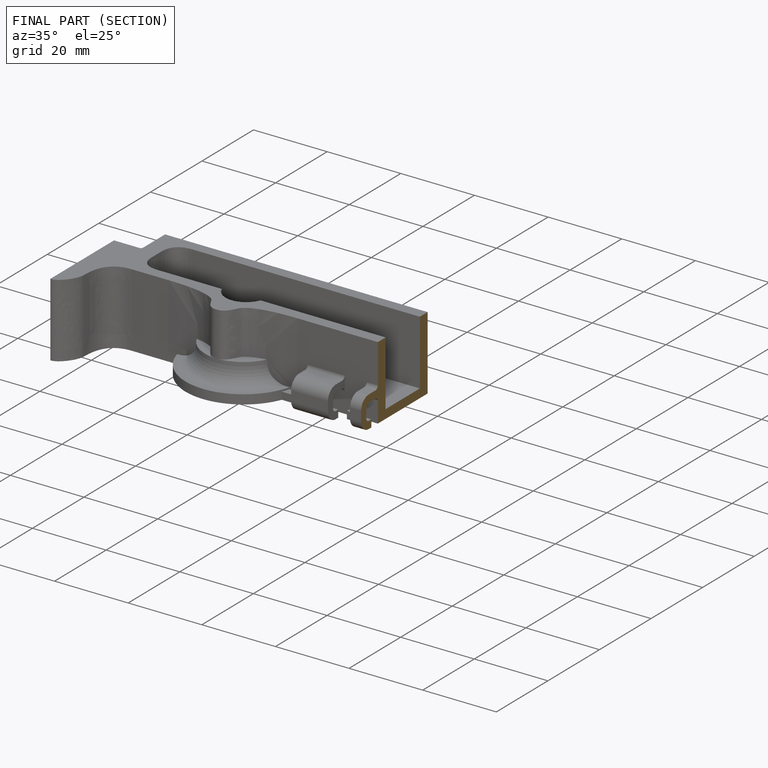
[diagram: finished part — half-section view (interior)]
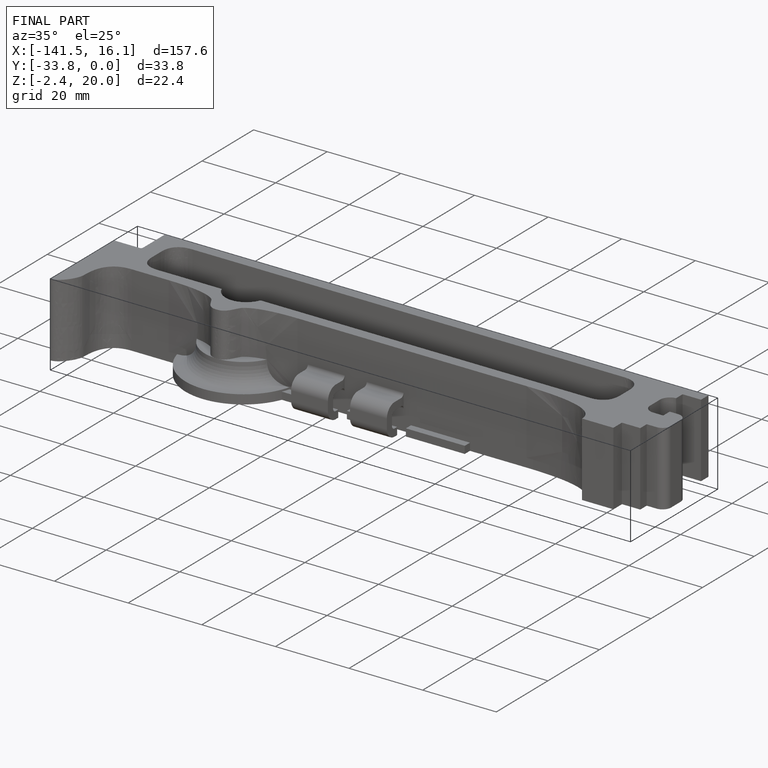
[diagram: finished part — iso view with bounding-box wireframe]
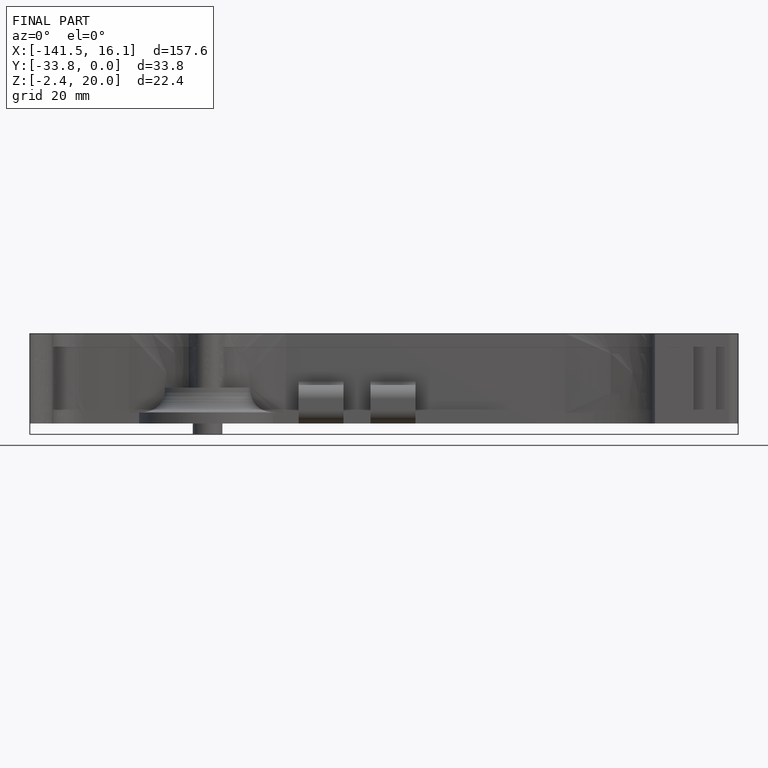
[diagram: finished part — front view with bounding-box wireframe]
